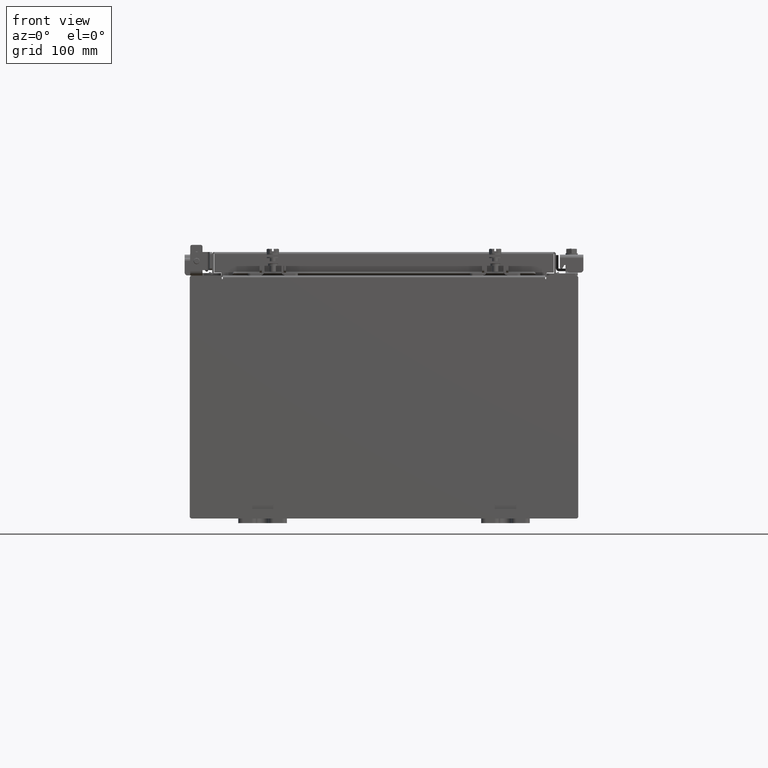
[diagram: clean part render]
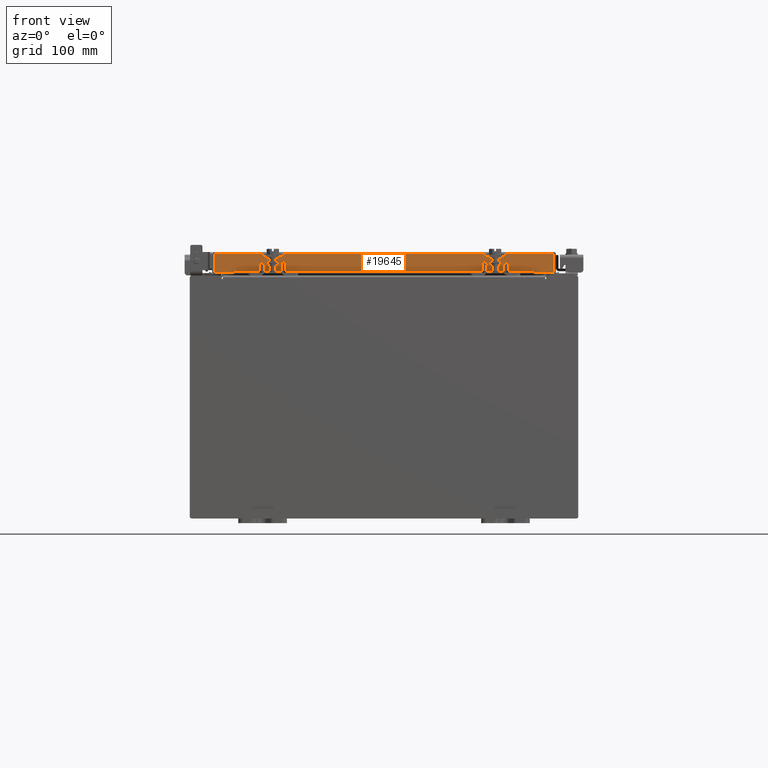
[diagram: same view with one face highlighted and labeled with its STEP entity id]
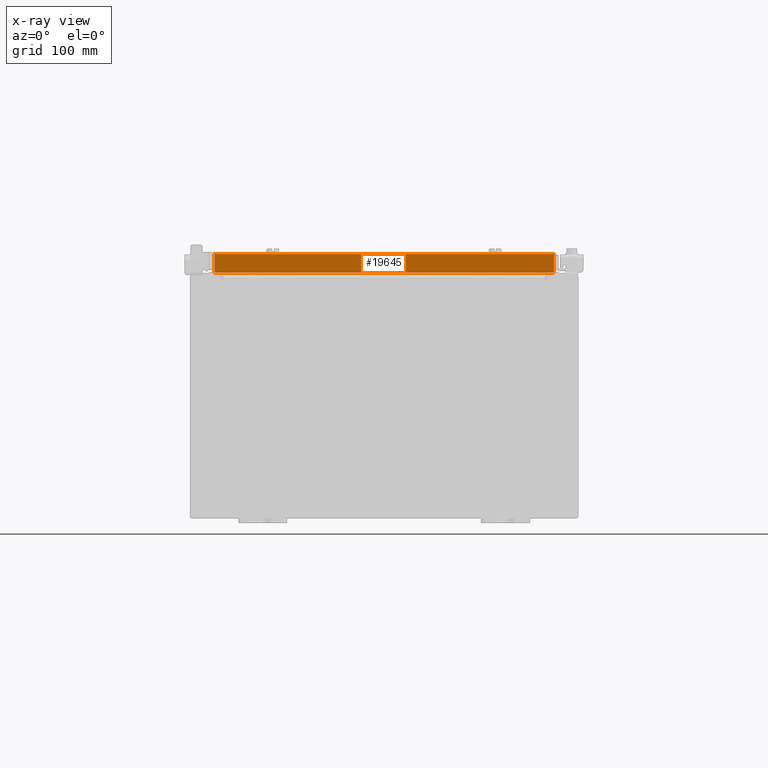
[diagram: x-ray of the same camera — body ghosted, the highlighted face saturated]
A machine part, front view. The second image highlights one B-rep face of the part: STEP entity #19645.
The next image is the same camera in x-ray: the body ghosted, the highlighted face saturated — about 0% of this face is hidden behind the body in this view.
In plain terms, the highlighted planar face has unit normal (-0, 1, -0).
Its self-contained STEP definition (entity closure, byte-faithful):
#1 = LINE ( 'NONE', #7671, #8613 ) ;
#439 = DIRECTION ( 'NONE',  ( 0.0000000000000000000, 2.818880942772360100E-015, 1.000000000000000000 ) ) ;
#978 = DIRECTION ( 'NONE',  ( 0.0000000000000000000, -2.818880942772360100E-015, -1.000000000000000000 ) ) ;
#1645 = CARTESIAN_POINT ( 'NONE',  ( -6.239157864376270600, -9.094000000000001200, -0.8500000000000002000 ) ) ;
#2215 = LINE ( 'NONE', #21785, #14881 ) ;
#2501 = CARTESIAN_POINT ( 'NONE',  ( 7.077999999999995000, -9.094000000000004700, -0.8499999999999996400 ) ) ;
#2928 = CARTESIAN_POINT ( 'NONE',  ( -6.989157864376270600, -9.094000000000004700, -0.8499999999999978700 ) ) ;
#3828 = LINE ( 'NONE', #12185, #17144 ) ;
#4090 = FACE_OUTER_BOUND ( 'NONE', #5563, .T. ) ;
#4302 = EDGE_CURVE ( 'NONE', #13360, #17736, #18441, .T. ) ;
#5103 = ORIENTED_EDGE ( 'NONE', *, *, #21135, .F. ) ;
#5563 = EDGE_LOOP ( 'NONE', ( #21889, #22288, #12557, #5103, #10566, #10734 ) ) ;
#5748 = EDGE_CURVE ( 'NONE', #10281, #17736, #2215, .T. ) ;
#6184 = VECTOR ( 'NONE', #10217, 39.37007874015748100 ) ;
#7200 = CARTESIAN_POINT ( 'NONE',  ( 6.989157864376266200, -9.094000000000004700, -0.8499999999999996400 ) ) ;
#7230 = VERTEX_POINT ( 'NONE', #7200 ) ;
#7671 = CARTESIAN_POINT ( 'NONE',  ( 7.077999999999995900, -9.094000000000003000, -0.08770000000000007000 ) ) ;
#8613 = VECTOR ( 'NONE', #11300, 39.37007874015748100 ) ;
#9878 = CARTESIAN_POINT ( 'NONE',  ( 6.989157864376266200, -9.094000000000003000, -0.08770000000000007000 ) ) ;
#10217 = DIRECTION ( 'NONE',  ( -1.000000000000000000, 0.0000000000000000000, 0.0000000000000000000 ) ) ;
#10281 = VERTEX_POINT ( 'NONE', #21980 ) ;
#10566 = ORIENTED_EDGE ( 'NONE', *, *, #11226, .F. ) ;
#10734 = ORIENTED_EDGE ( 'NONE', *, *, #20038, .F. ) ;
#10737 = DIRECTION ( 'NONE',  ( -3.535949605205718300E-031, 1.000000000000000000, -2.818880942772360100E-015 ) ) ;
#10759 = LINE ( 'NONE', #22501, #6184 ) ;
#11226 = EDGE_CURVE ( 'NONE', #7230, #16002, #3828, .T. ) ;
#11300 = DIRECTION ( 'NONE',  ( 1.000000000000000000, 3.535949605205719200E-031, -9.638176865770768000E-046 ) ) ;
#12185 = CARTESIAN_POINT ( 'NONE',  ( 7.077999999999995000, -9.094000000000004700, -0.8499999999999996400 ) ) ;
#12405 = AXIS2_PLACEMENT_3D ( 'NONE', #21269, #10737, #439 ) ;
#12557 = ORIENTED_EDGE ( 'NONE', *, *, #4302, .F. ) ;
#13071 = VERTEX_POINT ( 'NONE', #9878 ) ;
#13164 = CARTESIAN_POINT ( 'NONE',  ( 6.239157864376263500, -9.094000000000001200, -0.8500000000000002000 ) ) ;
#13360 = VERTEX_POINT ( 'NONE', #1645 ) ;
#13693 = EDGE_CURVE ( 'NONE', #10281, #13071, #1, .T. ) ;
#13759 = VECTOR ( 'NONE', #21561, 39.37007874015748100 ) ;
#14010 = DIRECTION ( 'NONE',  ( -1.000000000000000000, -0.0000000000000000000, 1.254380613084043100E-016 ) ) ;
#14160 = PLANE ( 'NONE',  #12405 ) ;
#14881 = VECTOR ( 'NONE', #978, 39.37007874015748100 ) ;
#15601 = CARTESIAN_POINT ( 'NONE',  ( 6.989157864376266200, -9.094000000000003000, -0.07469999999999978000 ) ) ;
#16002 = VERTEX_POINT ( 'NONE', #13164 ) ;
#17144 = VECTOR ( 'NONE', #14010, 39.37007874015748100 ) ;
#17411 = DIRECTION ( 'NONE',  ( -0.0000000000000000000, -2.818880942772360100E-015, -1.000000000000000000 ) ) ;
#17736 = VERTEX_POINT ( 'NONE', #2928 ) ;
#18441 = LINE ( 'NONE', #2501, #13759 ) ;
#19645 = ADVANCED_FACE ( 'NONE', ( #4090 ), #14160, .F. ) ;
#20038 = EDGE_CURVE ( 'NONE', #13071, #7230, #21262, .T. ) ;
#20157 = VECTOR ( 'NONE', #17411, 39.37007874015748100 ) ;
#21135 = EDGE_CURVE ( 'NONE', #16002, #13360, #10759, .T. ) ;
#21262 = LINE ( 'NONE', #15601, #20157 ) ;
#21269 = CARTESIAN_POINT ( 'NONE',  ( 3.215592570974081200E-030, -9.094000000000003000, 2.589571694958343600E-014 ) ) ;
#21561 = DIRECTION ( 'NONE',  ( -1.000000000000000000, -0.0000000000000000000, 1.254380613084043100E-016 ) ) ;
#21785 = CARTESIAN_POINT ( 'NONE',  ( -6.989157864376271500, -9.094000000000003000, 2.589571694958343600E-014 ) ) ;
#21889 = ORIENTED_EDGE ( 'NONE', *, *, #13693, .F. ) ;
#21980 = CARTESIAN_POINT ( 'NONE',  ( -6.989157864376271500, -9.094000000000003000, -0.08770000000000007000 ) ) ;
#22288 = ORIENTED_EDGE ( 'NONE', *, *, #5748, .T. ) ;
#22501 = CARTESIAN_POINT ( 'NONE',  ( 6.239157864376263500, -9.094000000000001200, -0.8500000000000002000 ) ) ;